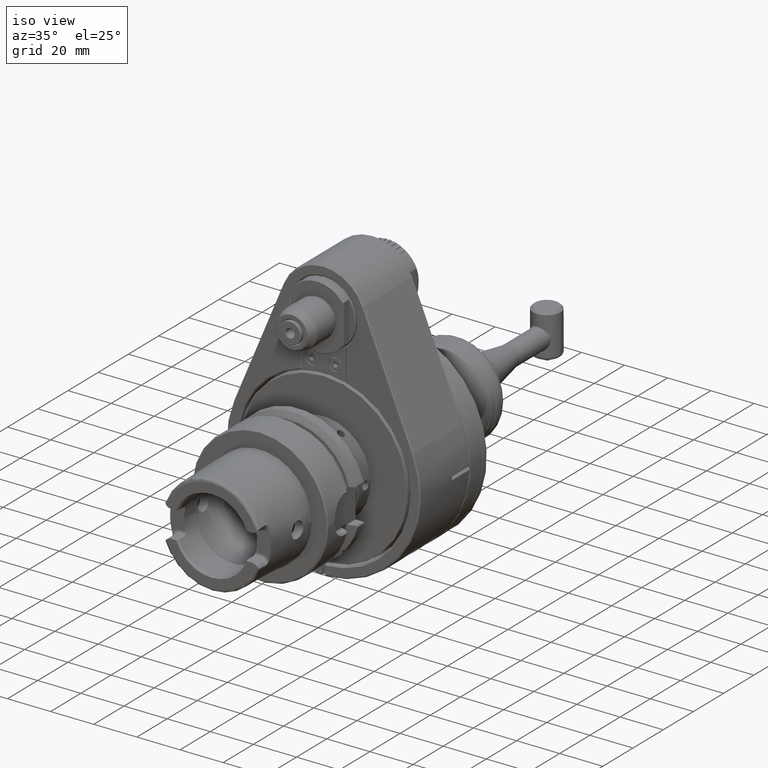
[diagram: clean part render]
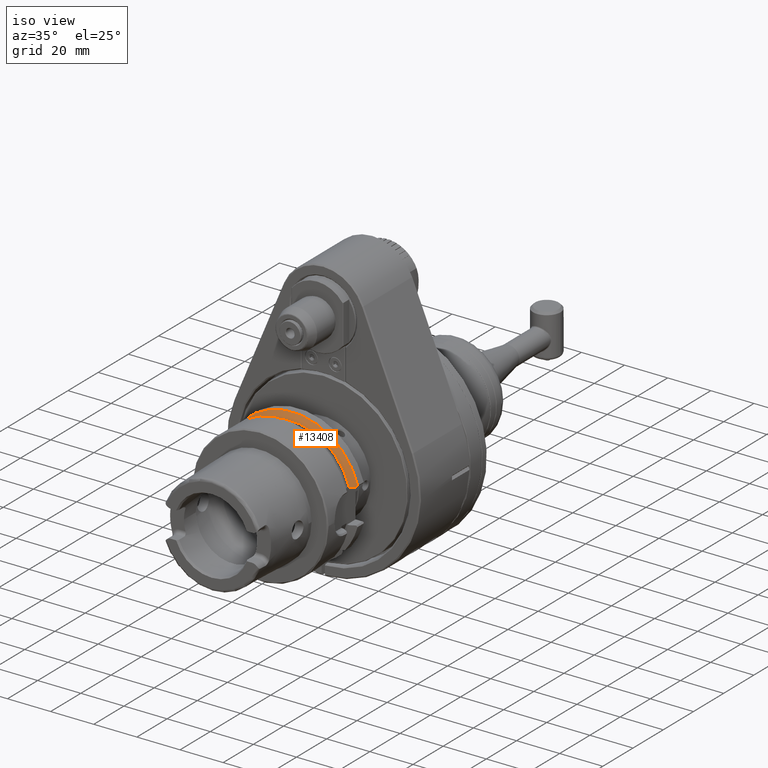
[diagram: same view with one face highlighted and labeled with its STEP entity id]
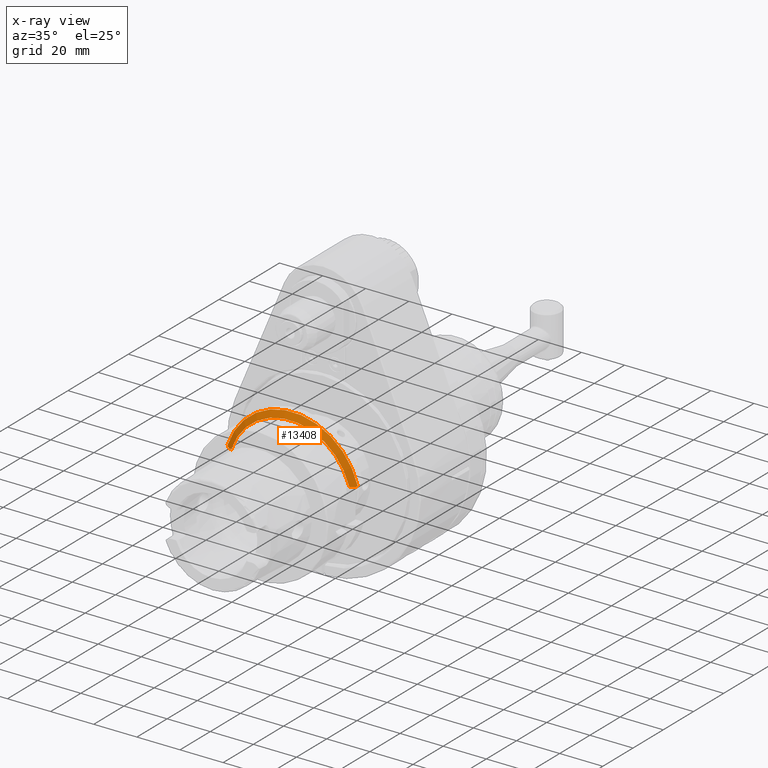
[diagram: x-ray of the same camera — body ghosted, the highlighted face saturated]
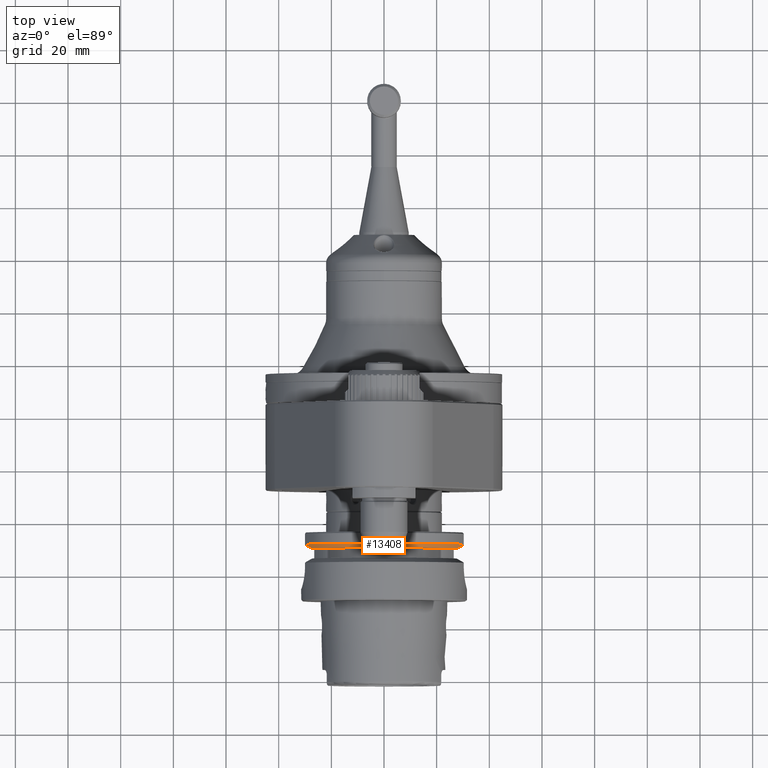
[diagram: same view with one face highlighted and labeled with its STEP entity id]
A machine part, iso view. The second image highlights one B-rep face of the part: STEP entity #13408.
The next image is the same camera in x-ray: the body ghosted, the highlighted face saturated — about 0% of this face is hidden behind the body in this view.
A second angle (top view) of the same face is appended — the face is thin or edge-on in the first view.
In plain terms, the highlighted conical surface has half-angle 60 deg.
Its self-contained STEP definition (entity closure, byte-faithful):
#292=B_SPLINE_CURVE_WITH_KNOTS('',3,(#29210,#29211,#29212,#29213,#29214,
#29215),.UNSPECIFIED.,.F.,.F.,(4,1,1,4),(0.,0.3333333333333,0.6666666666667,
1.),.UNSPECIFIED.);
#293=B_SPLINE_CURVE_WITH_KNOTS('',3,(#29219,#29220,#29221,#29222,#29223,
#29224),.UNSPECIFIED.,.F.,.F.,(4,1,1,4),(0.,0.3333333333333,0.6666666666667,
1.),.UNSPECIFIED.);
#462=CONICAL_SURFACE('',#14825,30.09270871885,1.0471975511966);
#3423=FACE_OUTER_BOUND('',#4274,.T.);
#4274=EDGE_LOOP('',(#11849,#11850,#11851,#11852,#11853,#11854));
#5004=CIRCLE('',#14824,204.279767974842);
#5005=CIRCLE('',#14826,28.6854174377);
#5006=CIRCLE('',#14827,194.048233636117);
#5007=CIRCLE('',#14828,31.5);
#6228=VERTEX_POINT('',#29203);
#6229=VERTEX_POINT('',#29204);
#6230=VERTEX_POINT('',#29209);
#6231=VERTEX_POINT('',#29216);
#6232=VERTEX_POINT('',#29218);
#6233=VERTEX_POINT('',#29225);
#8129=EDGE_CURVE('',#6228,#6229,#5004,.T.);
#8132=EDGE_CURVE('',#6230,#6229,#292,.T.);
#8133=EDGE_CURVE('',#6231,#6230,#5005,.T.);
#8134=EDGE_CURVE('',#6232,#6231,#293,.T.);
#8135=EDGE_CURVE('',#6232,#6233,#5006,.T.);
#8136=EDGE_CURVE('',#6228,#6233,#5007,.T.);
#11849=ORIENTED_EDGE('',*,*,#8129,.T.);
#11850=ORIENTED_EDGE('',*,*,#8132,.F.);
#11851=ORIENTED_EDGE('',*,*,#8133,.F.);
#11852=ORIENTED_EDGE('',*,*,#8134,.F.);
#11853=ORIENTED_EDGE('',*,*,#8135,.T.);
#11854=ORIENTED_EDGE('',*,*,#8136,.F.);
#13408=ADVANCED_FACE('',(#3423),#462,.T.);
#14824=AXIS2_PLACEMENT_3D('',#29205,#18477,#18478);
#14825=AXIS2_PLACEMENT_3D('',#29208,#18481,#18482);
#14826=AXIS2_PLACEMENT_3D('',#29217,#18483,#18484);
#14827=AXIS2_PLACEMENT_3D('',#29226,#18485,#18486);
#14828=AXIS2_PLACEMENT_3D('',#29227,#18487,#18488);
#18477=DIRECTION('center_axis',(0.808223859858606,2.70210395403586E-9,0.588875362326577));
#18478=DIRECTION('ref_axis',(-0.246693424731307,-0.908021767140116,0.338583556296048));
#18481=DIRECTION('center_axis',(0.,1.,0.));
#18482=DIRECTION('ref_axis',(1.,0.,0.));
#18483=DIRECTION('center_axis',(0.,-1.,0.));
#18484=DIRECTION('ref_axis',(0.960323824049734,0.,0.27888734815781));
#18485=DIRECTION('center_axis',(-0.798183420266009,-4.11510393615391E-9,
0.602414498175845));
#18486=DIRECTION('ref_axis',(0.252141609377712,-0.908192976550395,0.334081017366972));
#18487=DIRECTION('center_axis',(0.,1.,0.));
#18488=DIRECTION('ref_axis',(-0.951886237398687,0.,0.306451612903196));
#29203=CARTESIAN_POINT('',(-29.98441647806,-28.5,9.653225806452));
#29204=CARTESIAN_POINT('',(-29.50847335936,-28.87502034892,9.));
#29205=CARTESIAN_POINT('Origin',(20.8860022056705,156.615455558569,-60.1657703202534));
#29208=CARTESIAN_POINT('Origin',(1.100387705004E-14,-29.3125,0.));
#29209=CARTESIAN_POINT('',(-27.2369817266,-30.125,9.));
#29210=CARTESIAN_POINT('Ctrl Pts',(-27.2369817266,-30.125,9.));
#29211=CARTESIAN_POINT('Ctrl Pts',(-27.47043041059,-29.99702397757,9.));
#29212=CARTESIAN_POINT('Ctrl Pts',(-27.94993981013,-29.73383318287,9.));
#29213=CARTESIAN_POINT('Ctrl Pts',(-28.7049314259,-29.31840992677,9.));
#29214=CARTESIAN_POINT('Ctrl Pts',(-29.23620315986,-29.02537773984,9.));
#29215=CARTESIAN_POINT('Ctrl Pts',(-29.50847335936,-28.87502034892,9.));
#29216=CARTESIAN_POINT('',(27.54728976824,-30.125,8.));
#29217=CARTESIAN_POINT('Origin',(1.090437449761E-14,-30.125,0.));
#29218=CARTESIAN_POINT('',(29.81191037153,-28.86566556196,8.));
#29219=CARTESIAN_POINT('Ctrl Pts',(29.81191037153,-28.86566556196,8.));
#29220=CARTESIAN_POINT('Ctrl Pts',(29.53998143565,-29.01729904957,8.));
#29221=CARTESIAN_POINT('Ctrl Pts',(29.00967626627,-29.31272925148,8.));
#29222=CARTESIAN_POINT('Ctrl Pts',(28.25701757869,-29.7312420856,8.));
#29223=CARTESIAN_POINT('Ctrl Pts',(27.77957325437,-29.99621199639,8.));
#29224=CARTESIAN_POINT('Ctrl Pts',(27.54728976824,-30.125,8.));
#29225=CARTESIAN_POINT('',(30.29274763558,-28.5,8.637096774194));
#29226=CARTESIAN_POINT('Origin',(-18.6348862903326,147.733242900331,-56.1907345372236));
#29227=CARTESIAN_POINT('Origin',(1.110337960247E-14,-28.5,0.));